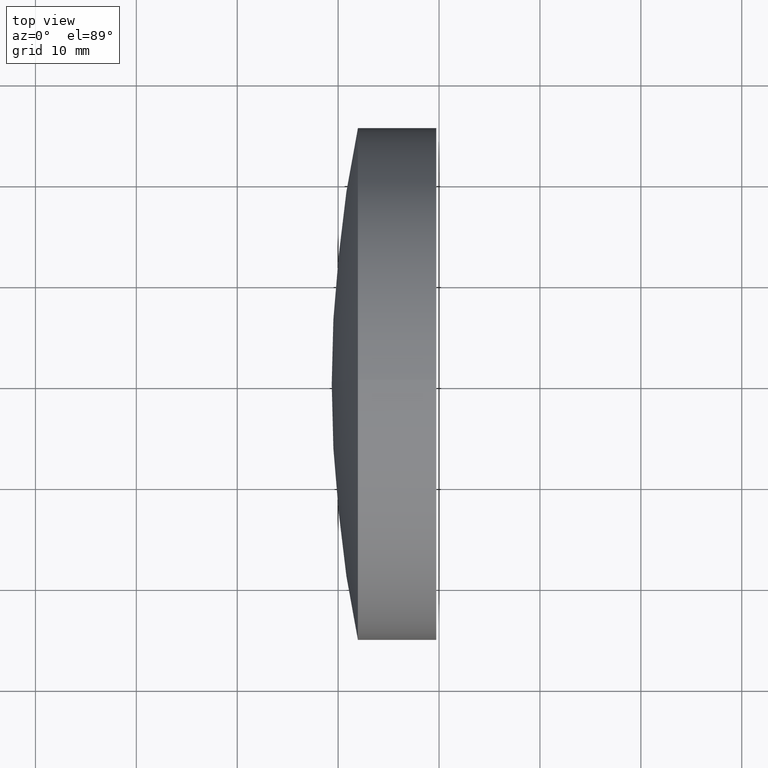
[diagram: clean part render]
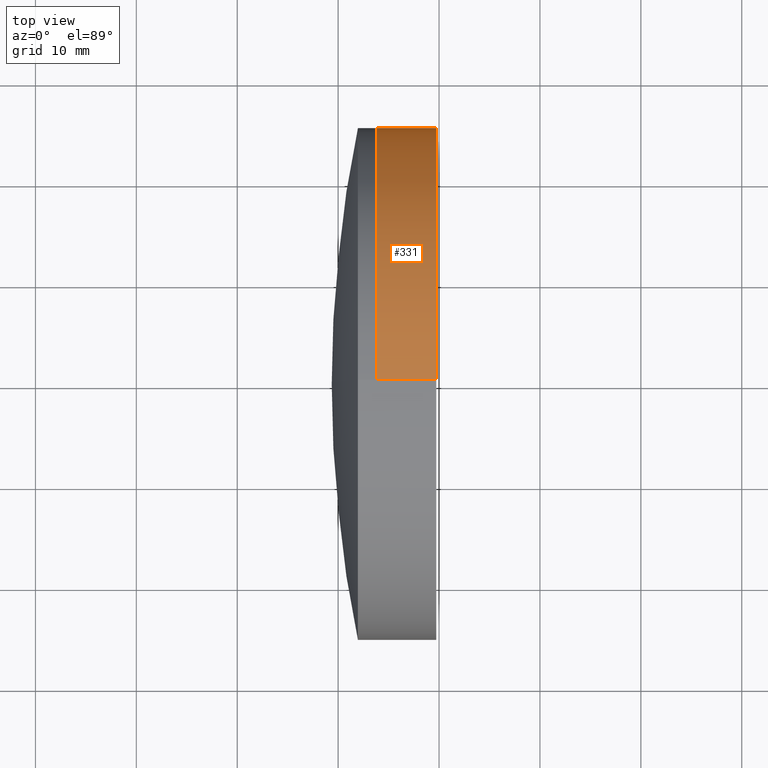
[diagram: same view with one face highlighted and labeled with its STEP entity id]
A machine part, top view. The second image highlights one B-rep face of the part: STEP entity #331.
In plain terms, the highlighted cylindrical surface (partial cylindrical patch) has radius 25.4 mm, axis along (-1, -0, -0).
Its self-contained STEP definition (entity closure, byte-faithful):
#27 = CARTESIAN_POINT ( 'NONE',  ( -0.5519199926577972300, 0.0000000000000000000, 0.0000000000000000000 ) ) ;
#30 = AXIS2_PLACEMENT_3D ( 'NONE', #27, #250, #140 ) ;
#32 = DIRECTION ( 'NONE',  ( -1.000000000000000000, -0.0000000000000000000, -0.0000000000000000000 ) ) ;
#38 = VECTOR ( 'NONE', #32, 1000.000000000000000 ) ;
#42 = EDGE_CURVE ( 'NONE', #251, #60, #295, .T. ) ;
#58 = CARTESIAN_POINT ( 'NONE',  ( 209.7231034970280100, 0.0000000000000000000, -25.40000000000006300 ) ) ;
#60 = VERTEX_POINT ( 'NONE', #96 ) ;
#81 = EDGE_CURVE ( 'NONE', #276, #251, #229, .T. ) ;
#88 = CIRCLE ( 'NONE', #209, 25.40000000000001300 ) ;
#93 = ORIENTED_EDGE ( 'NONE', *, *, #81, .F. ) ;
#96 = CARTESIAN_POINT ( 'NONE',  ( 203.8548626975037100, 0.0000000000000000000, -25.40000000000001300 ) ) ;
#98 = CARTESIAN_POINT ( 'NONE',  ( -0.5519199926577972300, 3.110602869834278400E-015, -25.40000000000001300 ) ) ;
#105 = CARTESIAN_POINT ( 'NONE',  ( 209.7231034970280100, -3.110602869834284800E-015, 25.40000000000006300 ) ) ;
#110 = EDGE_CURVE ( 'NONE', #276, #305, #88, .T. ) ;
#111 = LINE ( 'NONE', #98, #38 ) ;
#120 = ORIENTED_EDGE ( 'NONE', *, *, #342, .T. ) ;
#122 = ORIENTED_EDGE ( 'NONE', *, *, #110, .T. ) ;
#133 = DIRECTION ( 'NONE',  ( -1.000000000000000000, -0.0000000000000000000, -0.0000000000000000000 ) ) ;
#139 = ORIENTED_EDGE ( 'NONE', *, *, #42, .F. ) ;
#140 = DIRECTION ( 'NONE',  ( 0.0000000000000000000, 0.0000000000000000000, 1.000000000000000000 ) ) ;
#152 = DIRECTION ( 'NONE',  ( -1.000000000000000000, -0.0000000000000000000, -0.0000000000000000000 ) ) ;
#173 = CARTESIAN_POINT ( 'NONE',  ( 209.7231034970280100, 0.0000000000000000000, 0.0000000000000000000 ) ) ;
#179 = CARTESIAN_POINT ( 'NONE',  ( -0.5519199926577972300, 0.0000000000000000000, 25.40000000000001300 ) ) ;
#182 = CARTESIAN_POINT ( 'NONE',  ( 203.8548626975037100, -3.110602869834278400E-015, 25.40000000000004100 ) ) ;
#193 = AXIS2_PLACEMENT_3D ( 'NONE', #288, #152, #306 ) ;
#204 = VECTOR ( 'NONE', #264, 1000.000000000000000 ) ;
#209 = AXIS2_PLACEMENT_3D ( 'NONE', #173, #133, #319 ) ;
#229 = LINE ( 'NONE', #179, #204 ) ;
#250 = DIRECTION ( 'NONE',  ( -1.000000000000000000, -0.0000000000000000000, -0.0000000000000000000 ) ) ;
#251 = VERTEX_POINT ( 'NONE', #182 ) ;
#263 = FACE_OUTER_BOUND ( 'NONE', #292, .T. ) ;
#264 = DIRECTION ( 'NONE',  ( -1.000000000000000000, -0.0000000000000000000, -0.0000000000000000000 ) ) ;
#276 = VERTEX_POINT ( 'NONE', #105 ) ;
#288 = CARTESIAN_POINT ( 'NONE',  ( 203.8548626975037100, 0.0000000000000000000, 0.0000000000000000000 ) ) ;
#292 = EDGE_LOOP ( 'NONE', ( #122, #120, #139, #93 ) ) ;
#293 = CYLINDRICAL_SURFACE ( 'NONE', #30, 25.40000000000001300 ) ;
#295 = CIRCLE ( 'NONE', #193, 25.40000000000001300 ) ;
#305 = VERTEX_POINT ( 'NONE', #58 ) ;
#306 = DIRECTION ( 'NONE',  ( 0.0000000000000000000, 0.0000000000000000000, 1.000000000000000000 ) ) ;
#319 = DIRECTION ( 'NONE',  ( 0.0000000000000000000, 0.0000000000000000000, 1.000000000000000000 ) ) ;
#331 = ADVANCED_FACE ( 'NONE', ( #263 ), #293, .T. ) ;
#342 = EDGE_CURVE ( 'NONE', #305, #60, #111, .T. ) ;